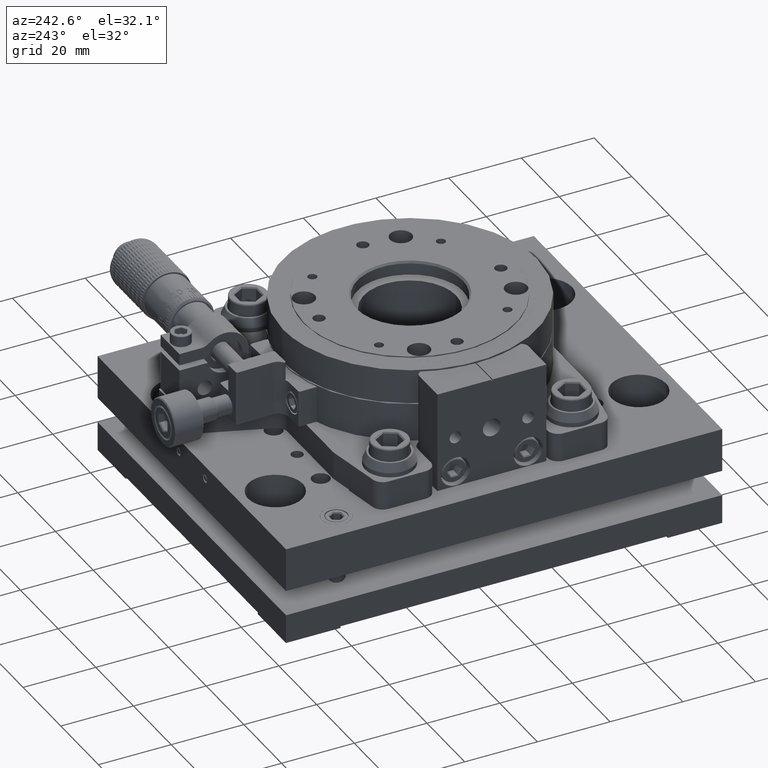
[diagram: clean part render]
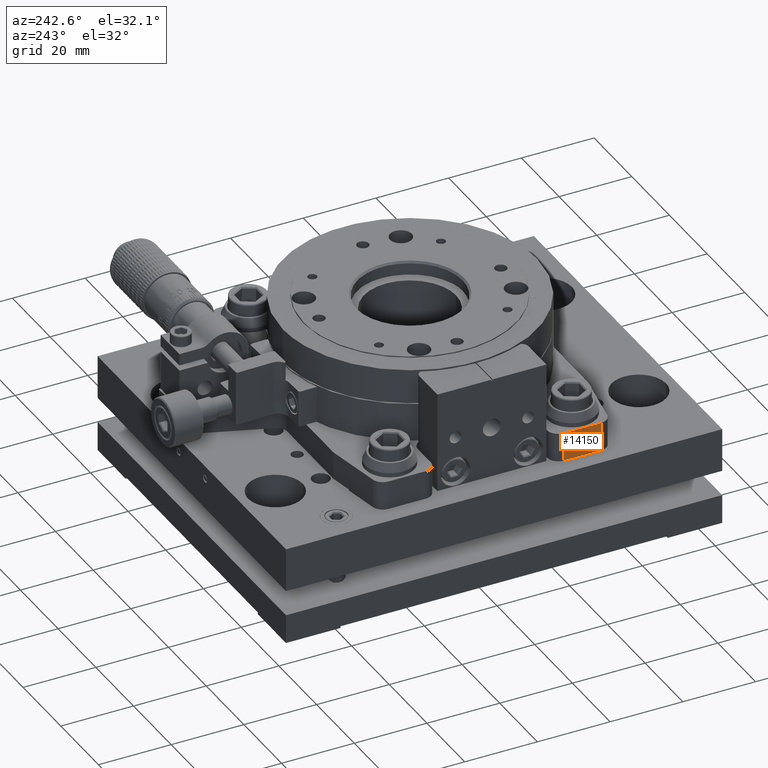
[diagram: same view with one face highlighted and labeled with its STEP entity id]
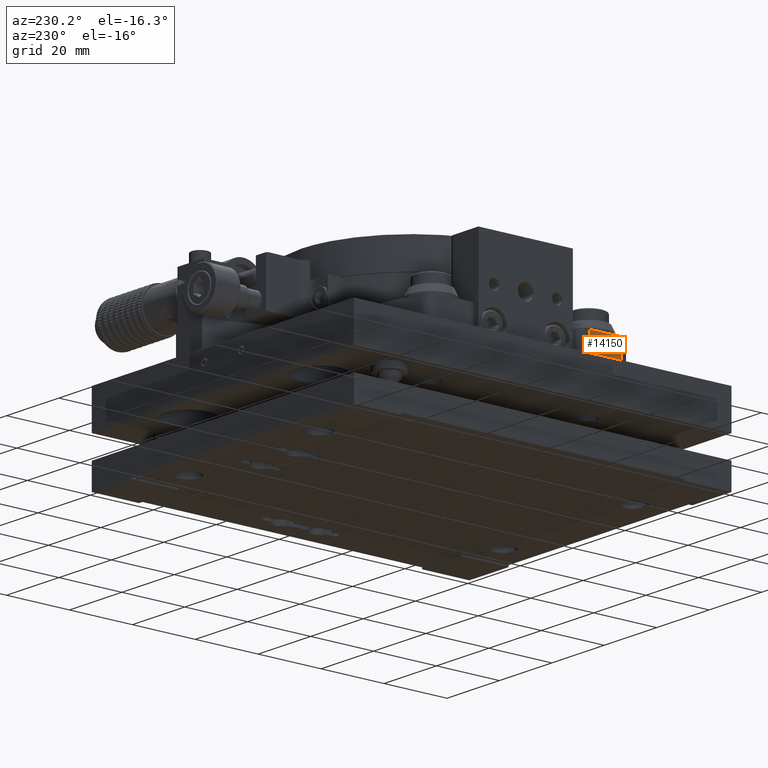
[diagram: same view with one face highlighted and labeled with its STEP entity id]
A machine part, auxiliary view. The second image highlights one B-rep face of the part: STEP entity #14150.
A second angle (auxiliary view) of the same face is appended — the face is thin or edge-on in the first view.
In plain terms, the highlighted planar face has unit normal (-1, 0, 0).
Its self-contained STEP definition (entity closure, byte-faithful):
#14150=ADVANCED_FACE('',(#20175),#110169,.T.);
#20175=FACE_OUTER_BOUND('',#26690,.T.);
#26690=EDGE_LOOP('',(#58990,#58991,#58992,#58993));
#58990=ORIENTED_EDGE('',*,*,#76924,.T.);
#58991=ORIENTED_EDGE('',*,*,#77092,.T.);
#58992=ORIENTED_EDGE('',*,*,#77093,.T.);
#58993=ORIENTED_EDGE('',*,*,#77090,.F.);
#76924=EDGE_CURVE('',#105038,#105037,#92445,.T.);
#77090=EDGE_CURVE('',#105038,#105124,#92513,.T.);
#77092=EDGE_CURVE('',#105037,#105125,#92514,.T.);
#77093=EDGE_CURVE('',#105125,#105124,#92515,.T.);
#92445=B_SPLINE_CURVE_WITH_KNOTS('',1,(#189106,#189107),.UNSPECIFIED.,.F.,
 .F.,(2,2),(-10.2528994653159,0.),.UNSPECIFIED.);
#92513=B_SPLINE_CURVE_WITH_KNOTS('',1,(#189602,#189603),.UNSPECIFIED.,.F.,
 .F.,(2,2),(0.,7.9),.UNSPECIFIED.);
#92514=B_SPLINE_CURVE_WITH_KNOTS('',1,(#189607,#189608),.UNSPECIFIED.,.F.,
 .F.,(2,2),(0.,7.9),.UNSPECIFIED.);
#92515=B_SPLINE_CURVE_WITH_KNOTS('',1,(#189609,#189610),.UNSPECIFIED.,.F.,
 .F.,(2,2),(0.,10.2528994653159),.UNSPECIFIED.);
#105037=VERTEX_POINT('',#188316);
#105038=VERTEX_POINT('',#188317);
#105124=VERTEX_POINT('',#188403);
#105125=VERTEX_POINT('',#188404);
#110169=PLANE('',#116018);
#116018=AXIS2_PLACEMENT_3D('',#188152,#121166,$);
#121166=DIRECTION('',(-1.,0.,0.));
#188152=CARTESIAN_POINT('',(-50.2498945992674,-34.8059050621693,26.0901011709705));
#188316=CARTESIAN_POINT('',(-50.2498945992674,-33.6606151156377,27.0001011709705));
#188317=CARTESIAN_POINT('',(-50.2498945992674,-23.4077156503218,27.0001011709705));
#188403=CARTESIAN_POINT('',(-50.2498945992674,-23.4077156503218,34.9001011709705));
#188404=CARTESIAN_POINT('',(-50.2498945992674,-33.6606151156377,34.9001011709705));
#189106=CARTESIAN_POINT('',(-50.2498945992674,-23.4077156503218,27.0001011709705));
#189107=CARTESIAN_POINT('',(-50.2498945992674,-33.6606151156377,27.0001011709705));
#189602=CARTESIAN_POINT('',(-50.2498945992674,-23.4077156503218,27.0001011709705));
#189603=CARTESIAN_POINT('',(-50.2498945992674,-23.4077156503218,34.9001011709705));
#189607=CARTESIAN_POINT('',(-50.2498945992674,-33.6606151156377,27.0001011709705));
#189608=CARTESIAN_POINT('',(-50.2498945992674,-33.6606151156377,34.9001011709705));
#189609=CARTESIAN_POINT('',(-50.2498945992674,-33.6606151156377,34.9001011709705));
#189610=CARTESIAN_POINT('',(-50.2498945992674,-23.4077156503218,34.9001011709705));